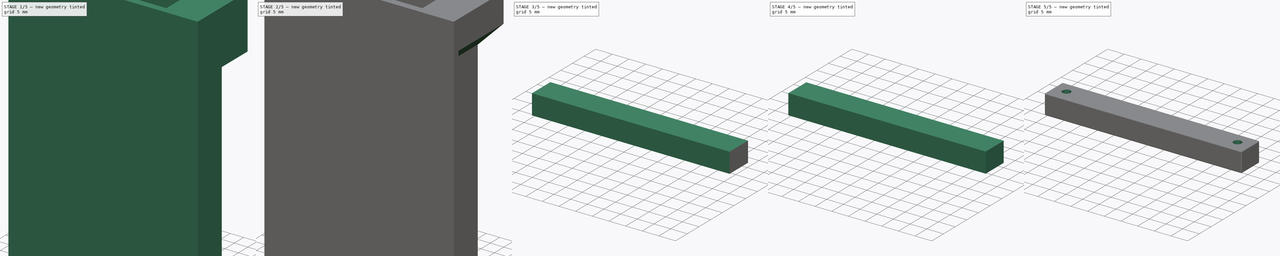
[diagram: build sequence overview — one tinted view per stage of 5, left to right]
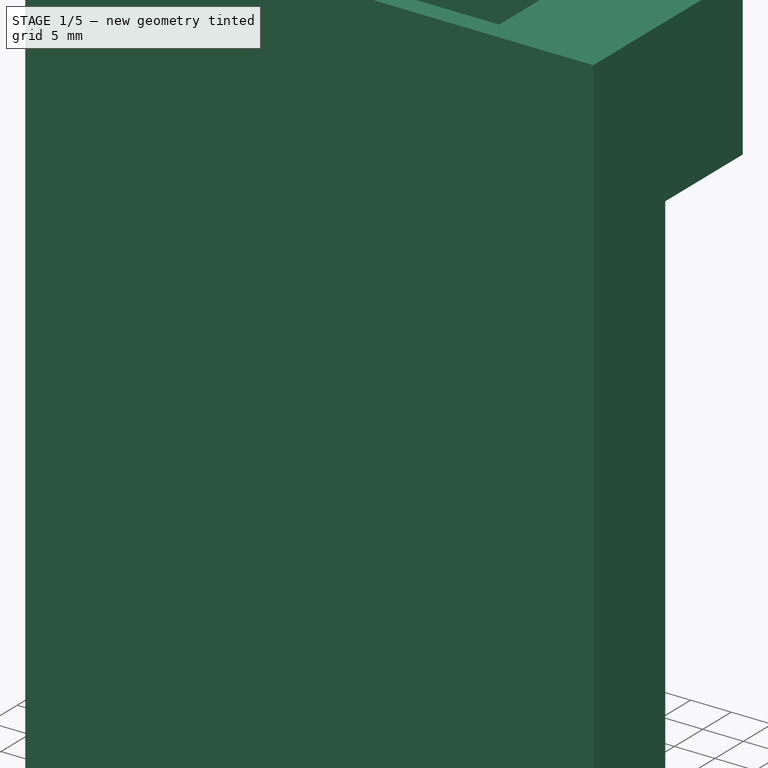
[diagram: stage 1 of 5 — iso view after this stage's code; geometry added in this stage tinted green]
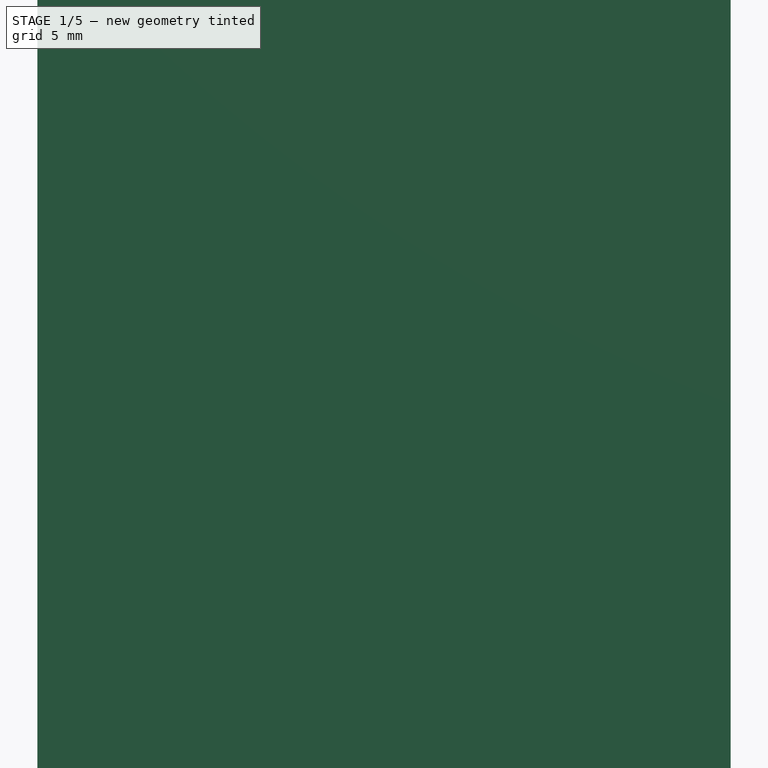
[diagram: stage 1 of 5 — front view after this stage's code; geometry added in this stage tinted green]
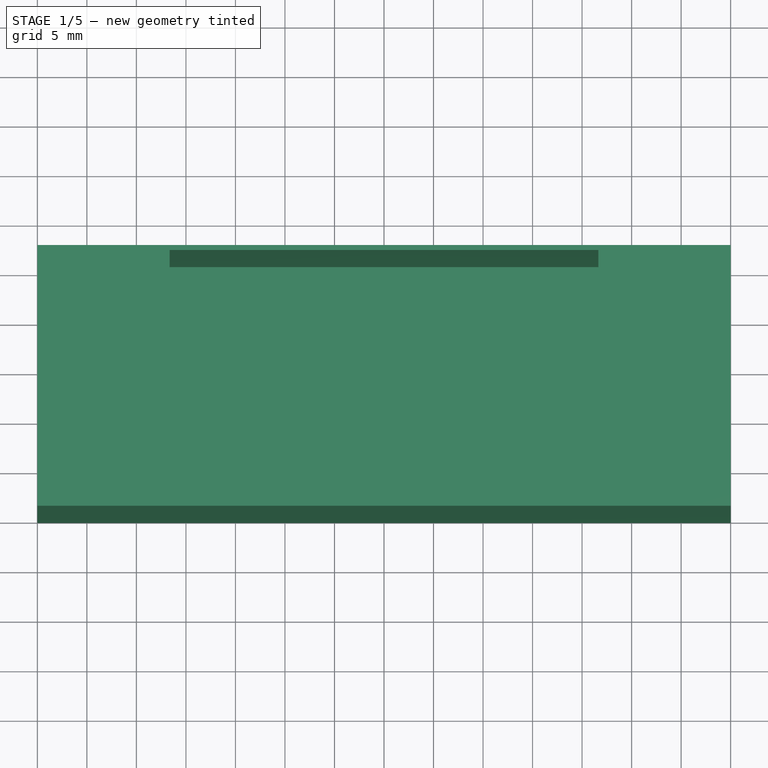
[diagram: stage 1 of 5 — top view after this stage's code; geometry added in this stage tinted green]
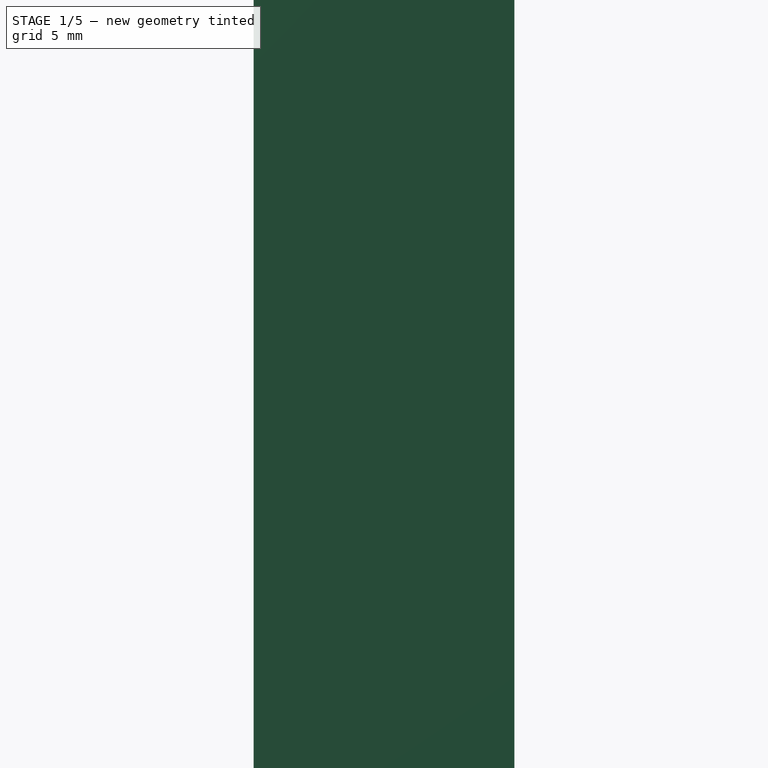
[diagram: stage 1 of 5 — right view after this stage's code; geometry added in this stage tinted green]
FCSTD DOCUMENT  (FreeCAD 1.0R39319 (Git))
Label: battery holder
License: All rights reserved
LicenseURL: https://en.wikipedia.org/wiki/All_rights_reserved
objects: PartDesign::Pocket×10, Sketcher::SketchObject×9, PartDesign::Pad×3, PartDesign::Fillet×2, PartDesign::Body×2, App::DocumentObjectGroup×1, PartDesign::Chamfer×1, PartDesign::SubShapeBinder×1
note: 69 computed .brp shape members not serialized (recipe doc carries the construction recipe); baked Part::Feature solids carry a one-line shape summary decoded from their .brp

FEATURE [Sketcher::SketchObject] Sketch
  ArcFitTolerance = 1e-06
  AttachmentSupport = -> [XY_Plane]
  FullyConstrained = true
  MakeInternals = false
  MapMode = 5
  sketch-geometry (8):
    g0: LineSegment StartX=0 StartY=0 StartZ=0 EndX=70 EndY=0 EndZ=0
    g1: LineSegment StartX=70 StartY=0 StartZ=0 EndX=70 EndY=2.52 EndZ=0
    g2: LineSegment StartX=70 StartY=2.52 StartZ=0 EndX=60.45 EndY=2.52 EndZ=0
    g3: LineSegment StartX=60.45 StartY=2.52 StartZ=0 EndX=60.45 EndY=26.32 EndZ=0
    g4: LineSegment StartX=60.45 StartY=26.32 StartZ=0 EndX=9.55 EndY=26.32 EndZ=0
    g5: LineSegment StartX=9.55 StartY=26.32 StartZ=0 EndX=9.55 EndY=2.52 EndZ=0
    g6: LineSegment StartX=9.55 StartY=2.52 StartZ=0 EndX=0 EndY=2.52 EndZ=0
    g7: LineSegment StartX=0 StartY=2.52 StartZ=0 EndX=0 EndY=0 EndZ=0
  constraints (23):
    c: Coincident(g-1,g0)
    c: PointOnObject(g0,g-1)
    c: Coincident(g0,g1)
    c: Vertical(g1)
    c: Coincident(g1,g2)
    c: Horizontal(g2)
    c: Coincident(g2,g3)
    c: Vertical(g3)
    c: Coincident(g3,g4)
    c: Horizontal(g4)
    c: Coincident(g4,g5)
    c: Vertical(g5)
    c: Coincident(g5,g6)
    c: PointOnObject(g6,g-2)
    c: Horizontal(g6)
    c: Coincident(g6,g7)
    c: Coincident(g7,g0)
    c: DistanceX(g0,g0) = 70
    c: Distance(g7,g7) = 2.52
    c: Equal(g7,g1)
    c: DistanceY(g5,g5) = 23.8
    c: DistanceX(g4,g4) = 50.9
    c: Equal(g6,g2)
FEATURE [PartDesign::Pad] Pad
  Direction = (0,0,1)
  Length = 99.8
  Length2 = 10
  Profile = -> Sketch
  ReferenceAxis = -> Sketch [N_Axis]
  Refine = true
  Suppressed = false
  Type = 0
FEATURE [App::DocumentObjectGroup] Measurements
FEATURE [Sketcher::SketchObject] Sketch001
  ArcFitTolerance = 1e-06
  AttachmentSupport = -> [Pad]
  ExternalGeometry = -> [Pad]
  FullyConstrained = true
  MakeInternals = false
  MapMode = 5
  Placement = pos=(0,0,99.8) rot=(0,0,1;0rad)
  sketch-geometry (4):
    g0: LineSegment StartX=13.35 StartY=25.82 StartZ=0 EndX=13.35 EndY=2.52 EndZ=0
    g1: LineSegment StartX=13.35 StartY=2.52 StartZ=0 EndX=56.65 EndY=2.52 EndZ=0
    g2: LineSegment StartX=56.65 StartY=2.52 StartZ=0 EndX=56.65 EndY=25.82 EndZ=0
    g3: LineSegment StartX=56.65 StartY=25.82 StartZ=0 EndX=13.35 EndY=25.82 EndZ=0
  constraints (12):
    c: Coincident(g0,g1)
    c: Coincident(g1,g2)
    c: Coincident(g2,g3)
    c: Vertical(g0)
    c: Vertical(g2)
    c: Horizontal(g1)
    c: Horizontal(g3)
    c: Distance(g0,g2) = 43.3
    c: Distance(g1,g3) = 23.3
    c: Coincident(g3,g0)
    c: Distance(g3,g-3) = 0.5
    c: Distance(g-4,g0) = 3.8
FEATURE [PartDesign::Pocket] Pocket
  BaseFeature = -> Pad
  Direction = (0,0,-1)
  Length = 98.8
  Length2 = 5
  Profile = -> Sketch001
  ReferenceAxis = -> Sketch001 [N_Axis]
  Refine = true
  Suppressed = false
  Type = 0
FEATURE [Sketcher::SketchObject] Sketch002
  ArcFitTolerance = 1e-06
  AttachmentSupport = -> [Pocket]
  ExternalGeometry = -> [Pocket]
  FullyConstrained = true
  MakeInternals = false
  MapMode = 5
  Placement = pos=(0,0,99.8) rot=(0,0,1;0rad)
  sketch-geometry (8):
    g0: LineSegment StartX=60.45 StartY=26.32 StartZ=0 EndX=60.45 EndY=2.52 EndZ=0
    g1: LineSegment StartX=60.45 StartY=2.52 StartZ=0 EndX=70 EndY=2.52 EndZ=0
    g2: LineSegment StartX=70 StartY=2.52 StartZ=0 EndX=70 EndY=26.32 EndZ=0
    g3: LineSegment StartX=70 StartY=26.32 StartZ=0 EndX=60.45 EndY=26.32 EndZ=0
    g4: LineSegment StartX=9.55 StartY=26.32 StartZ=0 EndX=0 EndY=26.32 EndZ=0
    g5: LineSegment StartX=0 StartY=26.32 StartZ=0 EndX=0 EndY=2.52 EndZ=0
    g6: LineSegment StartX=0 StartY=2.52 StartZ=0 EndX=9.55 EndY=2.52 EndZ=0
    g7: LineSegment StartX=9.55 StartY=2.52 StartZ=0 EndX=9.55 EndY=26.32 EndZ=0
  constraints (20):
    c: Coincident(g0,g1)
    c: Coincident(g1,g2)
    c: Coincident(g2,g3)
    c: Coincident(g3,g0)
    c: Vertical(g0)
    c: Vertical(g2)
    c: Horizontal(g1)
    c: Horizontal(g3)
    c: Coincident(g0,g-5)
    c: Coincident(g1,g-6)
    c: Coincident(g4,g5)
    c: Coincident(g5,g6)
    c: Coincident(g6,g7)
    c: Coincident(g7,g4)
    c: Horizontal(g4)
    c: Horizontal(g6)
    c: Vertical(g5)
    c: Vertical(g7)
    c: Coincident(g4,g-4)
    c: Coincident(g5,g-3)
FEATURE [PartDesign::Pad] Pad001
  BaseFeature = -> Pocket
  Direction = (0,0,1)
  Length = 20
  Length2 = 10
  Profile = -> Sketch002
  ReferenceAxis = -> Sketch002 [N_Axis]
  Refine = true
  Reversed = true
  Suppressed = false
  Type = 0
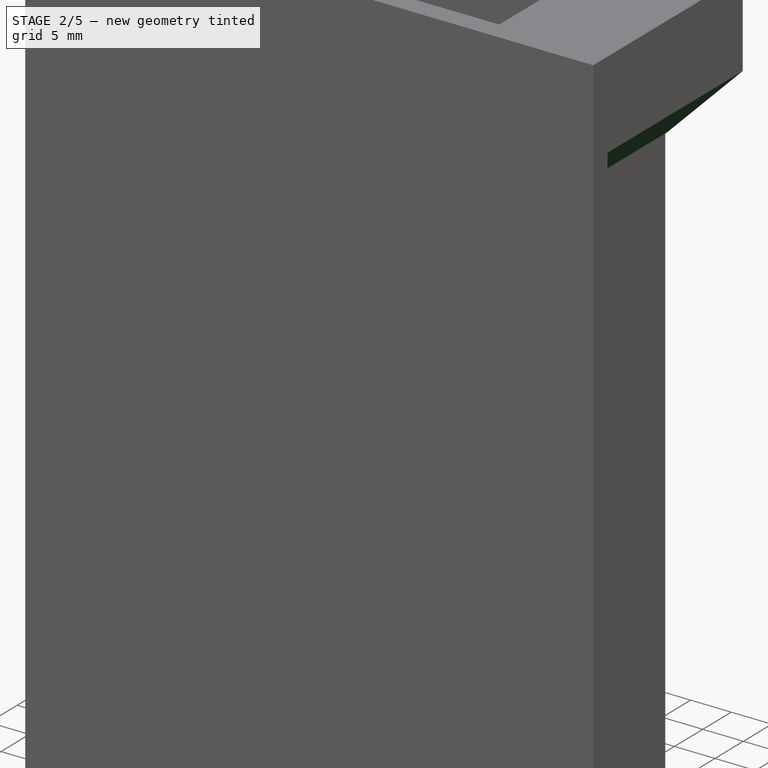
[diagram: stage 2 of 5 — iso view after this stage's code; geometry added in this stage tinted green]
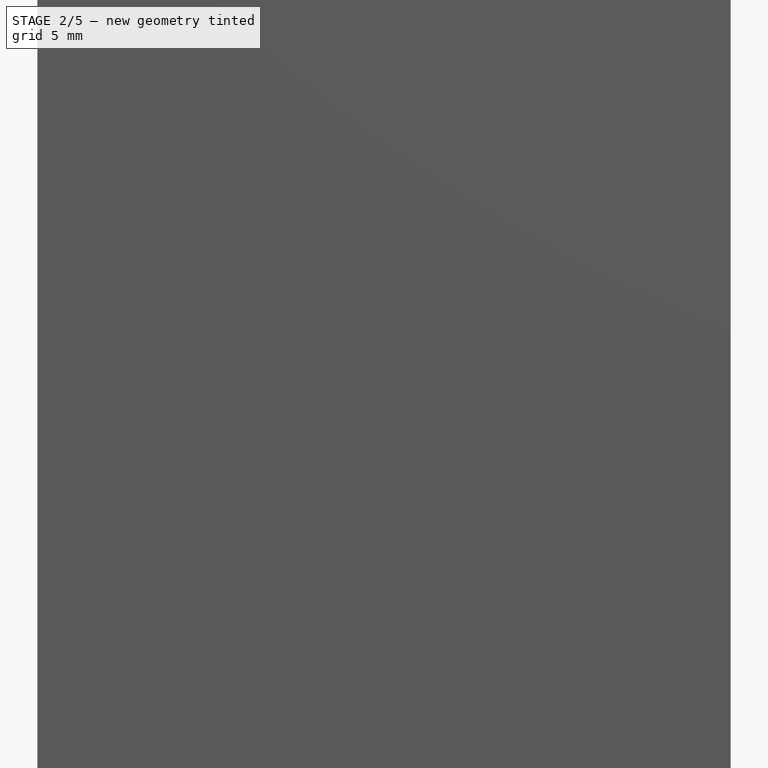
[diagram: stage 2 of 5 — front view after this stage's code; geometry added in this stage tinted green]
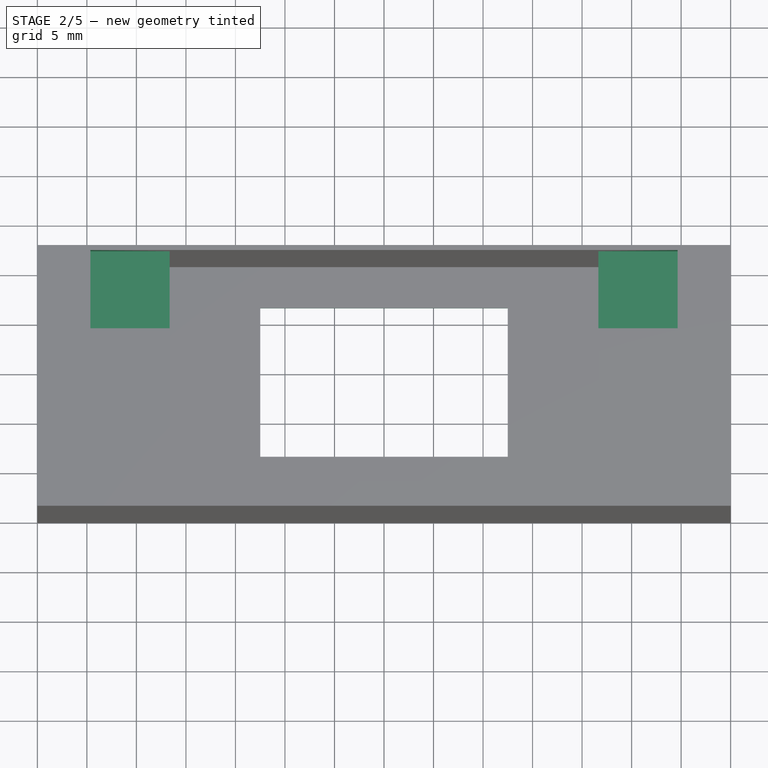
[diagram: stage 2 of 5 — top view after this stage's code; geometry added in this stage tinted green]
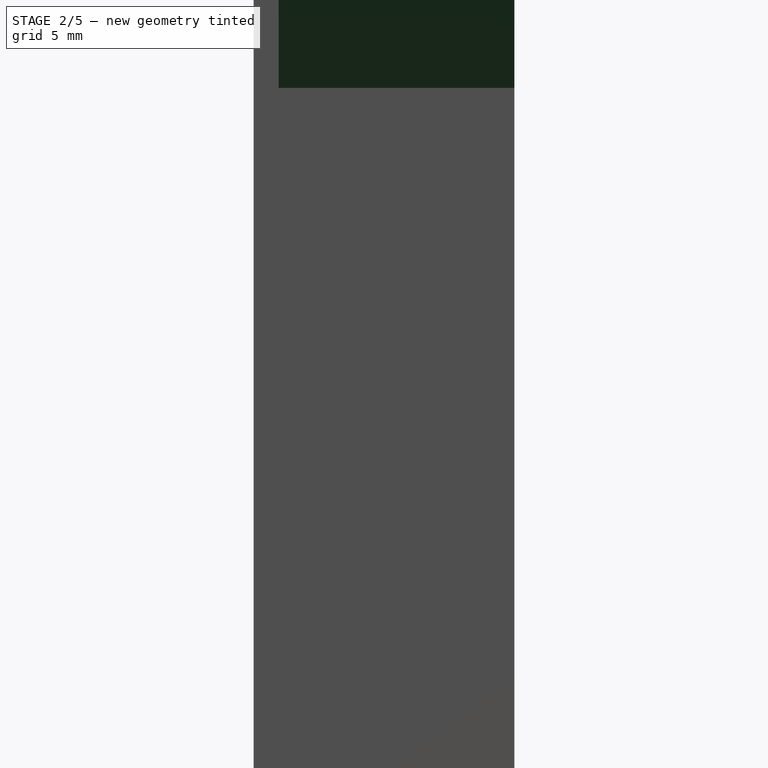
[diagram: stage 2 of 5 — right view after this stage's code; geometry added in this stage tinted green]
FEATURE [PartDesign::Chamfer] Chamfer
  Angle = 45
  Base = -> Pad001 [Edge23,Edge24]
  BaseFeature = -> Pad001
  ChamferType = 0
  FlipDirection = false
  Refine = true
  Size = 9.3
  Size2 = 1
  SupportTransform = false
  Suppressed = false
  UseAllEdges = false
FEATURE [Sketcher::SketchObject] Sketch003
  ArcFitTolerance = 1e-06
  AttachmentSupport = -> [Chamfer]
  ExternalGeometry = -> [Chamfer]
  FullyConstrained = true
  MakeInternals = false
  MapMode = 5
  Placement = pos=(0,0,99.8) rot=(0,0,1;0rad)
  sketch-geometry (8):
    g0: LineSegment StartX=13.35 StartY=25.82 StartZ=0 EndX=5.35 EndY=25.82 EndZ=0
    g1: LineSegment StartX=5.35 StartY=25.82 StartZ=0 EndX=5.35 EndY=17.92 EndZ=0
    g2: LineSegment StartX=5.35 StartY=17.92 StartZ=0 EndX=13.35 EndY=17.92 EndZ=0
    g3: LineSegment StartX=13.35 StartY=17.92 StartZ=0 EndX=13.35 EndY=25.82 EndZ=0
    g4: LineSegment StartX=56.65 StartY=25.82 StartZ=0 EndX=56.65 EndY=17.92 EndZ=0
    g5: LineSegment StartX=56.65 StartY=17.92 StartZ=0 EndX=64.65 EndY=17.92 EndZ=0
    g6: LineSegment StartX=64.65 StartY=17.92 StartZ=0 EndX=64.65 EndY=25.82 EndZ=0
    g7: LineSegment StartX=64.65 StartY=25.82 StartZ=0 EndX=56.65 EndY=25.82 EndZ=0
  constraints (22):
    c: Coincident(g0,g1)
    c: Coincident(g1,g2)
    c: Coincident(g2,g3)
    c: Coincident(g3,g0)
    c: Horizontal(g0)
    c: Horizontal(g2)
    c: Vertical(g1)
    c: Vertical(g3)
    c: Distance(g1,g3) = 8
    c: Distance(g0,g2) = 7.9
    c: Coincident(g0,g-3)
    c: Coincident(g4,g5)
    c: Coincident(g5,g6)
    c: Coincident(g6,g7)
    c: Coincident(g7,g4)
    c: Vertical(g4)
    c: Vertical(g6)
    c: Horizontal(g5)
    c: Horizontal(g7)
    c: Coincident(g4,g-4)
    c: Equal(g7,g0)
    c: Equal(g6,g1)
FEATURE [PartDesign::Pocket] Pocket001
  BaseFeature = -> Chamfer
  Direction = (0,0,-1)
  Length = 7.4
  Length2 = 5
  Profile = -> Sketch003
  ReferenceAxis = -> Sketch003 [N_Axis]
  Refine = true
  Suppressed = false
  Type = 0
FEATURE [Sketcher::SketchObject] Sketch004
  ArcFitTolerance = 1e-06
  AttachmentSupport = -> [Pocket001]
  ExternalGeometry = -> [Pocket001]
  FullyConstrained = true
  MakeInternals = false
  MapMode = 5
  Placement = pos=(0,0,1) rot=(0,0,1;0rad)
  sketch-geometry (7):
    g0: LineSegment [constr] StartX=13.35 StartY=25.82 StartZ=0 EndX=56.65 EndY=2.52 EndZ=0
    g1: LineSegment [constr] StartX=56.65 StartY=25.82 StartZ=0 EndX=13.35 EndY=2.52 EndZ=0
    g2: LineSegment StartX=22.5 StartY=6.67 StartZ=0 EndX=47.5 EndY=6.67 EndZ=0
    g3: LineSegment StartX=47.5 StartY=6.67 StartZ=0 EndX=47.5 EndY=21.67 EndZ=0
    g4: LineSegment StartX=47.5 StartY=21.67 StartZ=0 EndX=22.5 EndY=21.67 EndZ=0
    g5: LineSegment StartX=22.5 StartY=21.67 StartZ=0 EndX=22.5 EndY=6.67 EndZ=0
    g6: GeomPoint [constr] X=35 Y=14.17 Z=0
  constraints (16):
    c: Coincident(g0,g-3)
    c: Coincident(g0,g-4)
    c: Coincident(g1,g-3)
    c: Coincident(g1,g-4)
    c: Coincident(g2,g3)
    c: Coincident(g3,g4)
    c: Coincident(g4,g5)
    c: Coincident(g5,g2)
    c: Horizontal(g2)
    c: Horizontal(g4)
    c: Vertical(g3)
    c: Vertical(g5)
    c: Symmetric(g4,g2,g6)
    c: Distance(g3,g5) = 25
    c: Distance(g2,g4) = 15
    c: Symmetric(g1,g1,g6)
FEATURE [PartDesign::Pocket] Pocket002
  BaseFeature = -> Pocket001
  Direction = (0,0,-1)
  Length = 5
  Length2 = 5
  Profile = -> Sketch004
  ReferenceAxis = -> Sketch004 [N_Axis]
  Refine = true
  Suppressed = false
  Type = 2
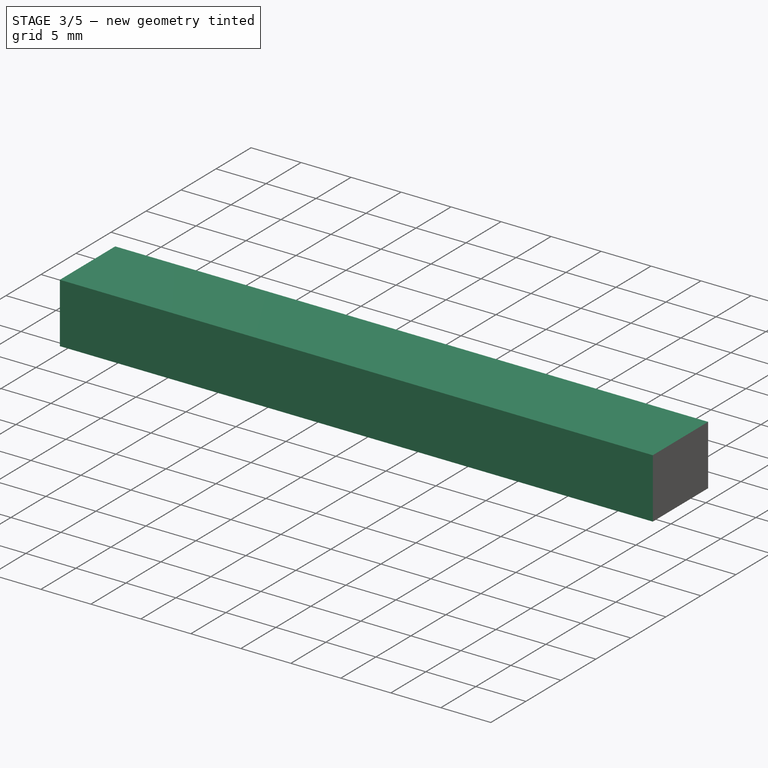
[diagram: stage 3 of 5 — iso view after this stage's code; geometry added in this stage tinted green]
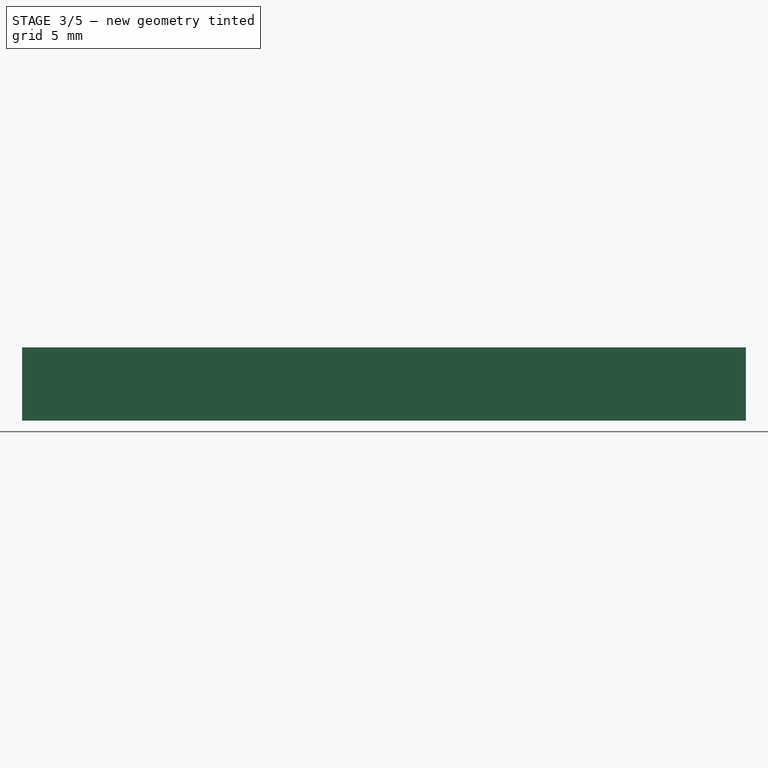
[diagram: stage 3 of 5 — front view after this stage's code; geometry added in this stage tinted green]
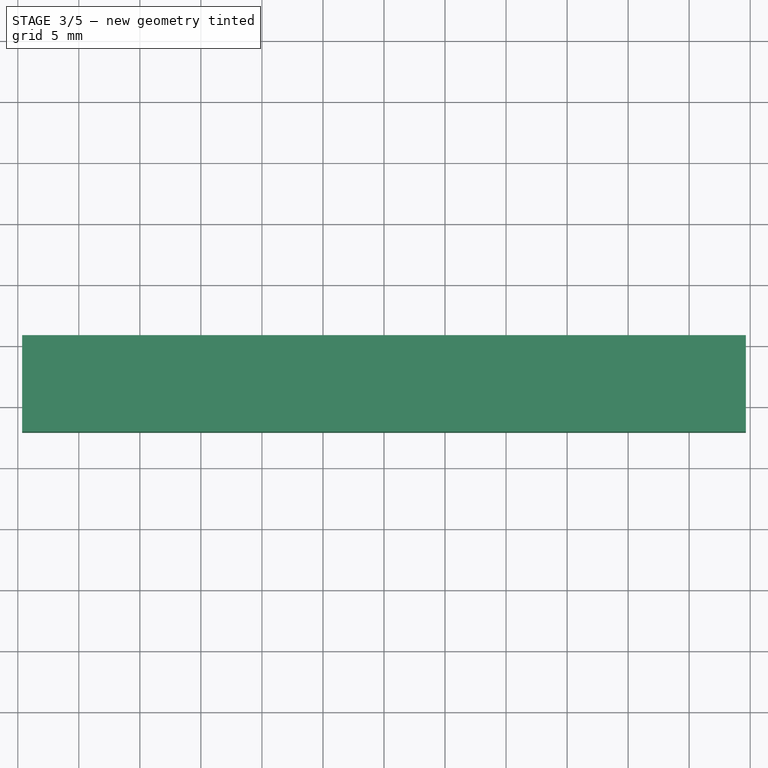
[diagram: stage 3 of 5 — top view after this stage's code; geometry added in this stage tinted green]
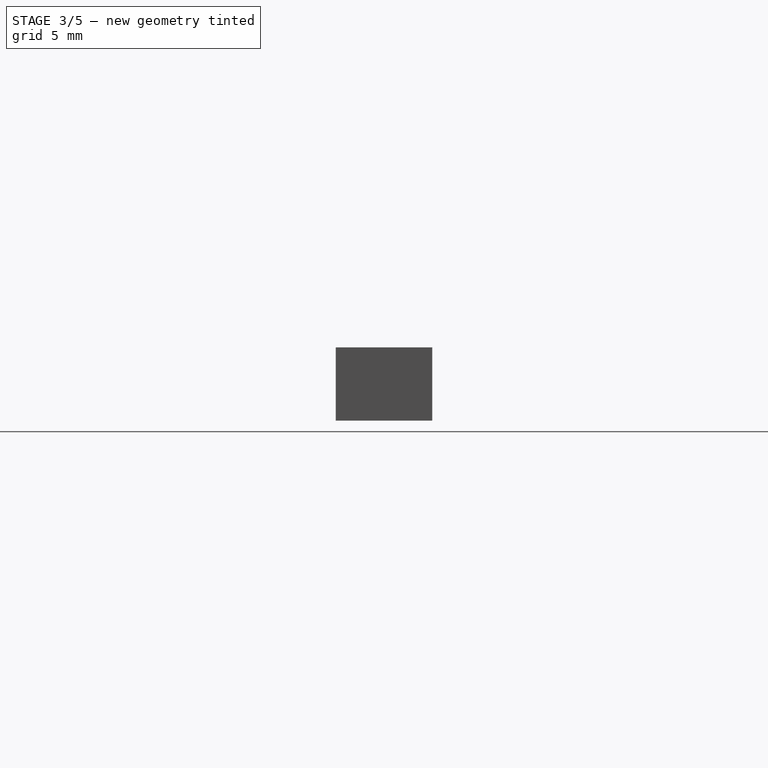
[diagram: stage 3 of 5 — right view after this stage's code; geometry added in this stage tinted green]
FEATURE [Sketcher::SketchObject] Sketch005
  ArcFitTolerance = 1e-06
  AttachmentSupport = -> [Pocket002]
  ExternalGeometry = -> [Pocket002]
  FullyConstrained = true
  MakeInternals = false
  MapMode = 5
  Placement = pos=(0,0,92.4) rot=(0,0,1;0rad)
  sketch-geometry (6):
    g0: LineSegment [constr] StartX=5.35 StartY=25.82 StartZ=0 EndX=13.35 EndY=17.92 EndZ=0
    g1: LineSegment [constr] StartX=5.35 StartY=17.92 StartZ=0 EndX=13.35 EndY=25.82 EndZ=0
    g2: LineSegment [constr] StartX=56.65 StartY=25.82 StartZ=0 EndX=64.65 EndY=17.92 EndZ=0
    g3: LineSegment [constr] StartX=56.65 StartY=17.92 StartZ=0 EndX=64.65 EndY=25.82 EndZ=0
    g4: Circle CenterX=9.35 CenterY=21.87 CenterZ=0 NormalX=0 NormalY=0 NormalZ=1 AngleXU=0 Radius=1.6
    g5: Circle CenterX=60.65 CenterY=21.87 CenterZ=0 NormalX=0 NormalY=0 NormalZ=1 AngleXU=0 Radius=1.6
  constraints (12):
    c: Coincident(g0,g-3)
    c: Coincident(g0,g-4)
    c: Coincident(g1,g-4)
    c: Coincident(g1,g-3)
    c: Coincident(g2,g-5)
    c: Coincident(g2,g-6)
    c: Coincident(g3,g-6)
    c: Coincident(g3,g-5)
    c: Diameter(g4) = 3.2
    c: Symmetric(g0,g0,g4)
    c: Symmetric(g3,g3,g5)
    c: Equal(g4,g5)
FEATURE [PartDesign::Pocket] Pocket003
  BaseFeature = -> Pocket002
  Direction = (0,0,-1)
  Length = 9
  Length2 = 5
  Profile = -> Sketch005
  ReferenceAxis = -> Sketch005 [N_Axis]
  Refine = true
  Suppressed = false
  Type = 0
FEATURE [Sketcher::SketchObject] Sketch006
  ArcFitTolerance = 1e-06
  AttachmentSupport = -> [Pocket003]
  ExternalGeometry = -> [Pocket003]
  FullyConstrained = true
  MakeInternals = false
  MapMode = 5
  Placement = pos=(0,2.52,0) rot=(0,0.707107,0.707107;3.14159rad)
  sketch-geometry (20):
    g0: Circle CenterX=-65.15 CenterY=75.23 CenterZ=0 NormalX=0 NormalY=0 NormalZ=1 AngleXU=0 Radius=2.2
    g1: Circle CenterX=-65.15 CenterY=5.05 CenterZ=0 NormalX=0 NormalY=0 NormalZ=1 AngleXU=0 Radius=2.2
    g2: Circle CenterX=-4.85 CenterY=75.23 CenterZ=0 NormalX=0 NormalY=0 NormalZ=1 AngleXU=0 Radius=2.2
    g3: Circle CenterX=-4.85 CenterY=5.05 CenterZ=0 NormalX=0 NormalY=0 NormalZ=1 AngleXU=0 Radius=2.2
    g4: LineSegment [constr] StartX=-70 StartY=0 StartZ=0 EndX=0 EndY=0 EndZ=0
    g5: LineSegment [constr] StartX=0 StartY=0 StartZ=0 EndX=0 EndY=2.85 EndZ=0
    g6: LineSegment [constr] StartX=0 StartY=2.85 StartZ=0 EndX=-70 EndY=2.85 EndZ=0
    g7: LineSegment [constr] StartX=-70 StartY=2.85 StartZ=0 EndX=-70 EndY=0 EndZ=0
    g8: LineSegment [constr] StartX=-70 StartY=73.03 StartZ=0 EndX=-70 EndY=2.85 EndZ=0
    g9: LineSegment [constr] StartX=-70 StartY=2.85 StartZ=0 EndX=0 EndY=2.85 EndZ=0
    g10: LineSegment [constr] StartX=0 StartY=2.85 StartZ=0 EndX=0 EndY=73.03 EndZ=0
    g11: LineSegment [constr] StartX=0 StartY=73.03 StartZ=0 EndX=-70 EndY=73.03 EndZ=0
    g12: LineSegment [constr] StartX=-70 StartY=89.1 StartZ=0 EndX=-70 EndY=0 EndZ=0
    g13: LineSegment [constr] StartX=-70 StartY=0 StartZ=0 EndX=-67.35 EndY=0 EndZ=0
    g14: LineSegment [constr] StartX=-67.35 StartY=0 StartZ=0 EndX=-67.35 EndY=89.1 EndZ=0
    g15: LineSegment [constr] StartX=-67.35 StartY=89.1 StartZ=0 EndX=-70 EndY=89.1 EndZ=0
    g16: LineSegment [constr] StartX=0 StartY=89.1 StartZ=0 EndX=-2.65 EndY=89.1 EndZ=0
    g17: LineSegment [constr] StartX=-2.65 StartY=89.1 StartZ=0 EndX=-2.65 EndY=0 EndZ=0
    g18: LineSegment [constr] StartX=-2.65 StartY=0 StartZ=0 EndX=0 EndY=0 EndZ=0
    g19: LineSegment [constr] StartX=0 StartY=0 StartZ=0 EndX=0 EndY=89.1 EndZ=0
  constraints (57):
    c: Diameter(g0) = 4.4
    c: Equal(g0,g1)
    c: Equal(g1,g3)
    c: Equal(g3,g2)
    c: Coincident(g4,g5)
    c: Coincident(g5,g6)
    c: Coincident(g6,g7)
    c: Coincident(g7,g4)
    c: Horizontal(g4)
    c: Horizontal(g6)
    c: Vertical(g5)
    c: Vertical(g7)
    c: Coincident(g4,g-5)
    c: PointOnObject(g5,g-6)
    c: Distance(g7,g7) = 2.85
    c: Tangent(g1,g6)
    c: Tangent(g3,g6)
    c: Coincident(g8,g9)
    c: Coincident(g9,g10)
    c: Coincident(g10,g11)
    c: Coincident(g11,g8)
    c: Vertical(g8)
    c: Vertical(g10)
    c: Horizontal(g9)
    c: Horizontal(g11)
    c: PointOnObject(g8,g-5)
    c: PointOnObject(g9,g-6)
    c: Tangent(g9,g1)
    c: DistanceY(g8,g8) = 70.18
    c: Tangent(g11,g0)
    c: Tangent(g2,g11)
    c: Coincident(g12,g13)
    c: Coincident(g13,g14)
    c: Coincident(g14,g15)
    c: Coincident(g15,g12)
    c: Vertical(g12)
    c: Vertical(g14)
    c: Horizontal(g13)
    c: Horizontal(g15)
    c: Coincident(g12,g-5)
    c: PointOnObject(g13,g4)
    c: Distance(g15,g15) = 2.65
    c: Tangent(g0,g14)
    c: Tangent(g1,g14)
    c: Coincident(g16,g17)
    c: Coincident(g17,g18)
    c: Coincident(g18,g19)
    c: Coincident(g19,g16)
    c: Horizontal(g16)
    c: Horizontal(g18)
    c: Vertical(g17)
    c: Vertical(g19)
    c: Coincident(g16,g-6)
    c: PointOnObject(g17,g4)
    c: Equal(g16,g15)
    c: Tangent(g2,g17)
    c: Tangent(g3,g17)
FEATURE [PartDesign::Pocket] Pocket004
  BaseFeature = -> Pocket003
  Direction = (0,-1,2e-16)
  Length = 5
  Length2 = 5
  Profile = -> Sketch006
  ReferenceAxis = -> Sketch006 [N_Axis]
  Refine = true
  Suppressed = false
  Type = 2
FEATURE [PartDesign::Fillet] Fillet
  Base = -> Pocket004 [Edge3,Edge54]
  BaseFeature = -> Pocket004
  Radius = 1
  Refine = true
  SupportTransform = false
  Suppressed = false
  UseAllEdges = false
FEATURE [PartDesign::Body] Body  label="Case"
  AllowCompound = false
  Group = -> [Sketch,Pad,Sketch001,Pocket,Sketch002,Pad001,Chamfer,Sketch003,Pocket001,Sketch004,Pocket002,Sketch005,Pocket003,Sketch006,Pocket004,Fillet]
  Origin = -> Origin
  Tip = -> Fillet
FEATURE [PartDesign::SubShapeBinder] Binder
  BindCopyOnChange = 0
  BindMode = 0
  ClaimChildren = false
  Context = -> Body001 [Binder.]
  Fuse = false
  MakeFace = true
  OffsetFill = false
  OffsetIntersection = false
  OffsetJoinType = 0
  OffsetOpenResult = false
  PartialLoad = false
  Refine = true
  Relative = true
  Support = -> [Body[Fillet.Face34,Fillet.Face35]]
  _Version = 2
FEATURE [Sketcher::SketchObject] Sketch007
  ArcFitTolerance = 1e-06
  AttachmentSupport = -> [Binder]
  ExternalGeometry = -> [Binder]
  FullyConstrained = true
  MakeInternals = false
  MapMode = 5
  Placement = pos=(0,0,92.4) rot=(0,0,1;0rad)
  sketch-geometry (4):
    g0: LineSegment StartX=5.35 StartY=25.82 StartZ=0 EndX=5.35 EndY=17.92 EndZ=0
    g1: LineSegment StartX=5.35 StartY=17.92 StartZ=0 EndX=64.65 EndY=17.92 EndZ=0
    g2: LineSegment StartX=64.65 StartY=17.92 StartZ=0 EndX=64.65 EndY=25.82 EndZ=0
    g3: LineSegment StartX=64.65 StartY=25.82 StartZ=0 EndX=5.35 EndY=25.82 EndZ=0
  constraints (10):
    c: Coincident(g0,g1)
    c: Coincident(g1,g2)
    c: Coincident(g2,g3)
    c: Coincident(g3,g0)
    c: Vertical(g0)
    c: Vertical(g2)
    c: Horizontal(g1)
    c: Horizontal(g3)
    c: Coincident(g0,g-4)
    c: Coincident(g1,g-3)
FEATURE [PartDesign::Pad] Pad002
  Direction = (0,0,1)
  Length = 6
  Length2 = 10
  Profile = -> Sketch007
  ReferenceAxis = -> Sketch007 [N_Axis]
  Refine = true
  Suppressed = false
  Type = 0
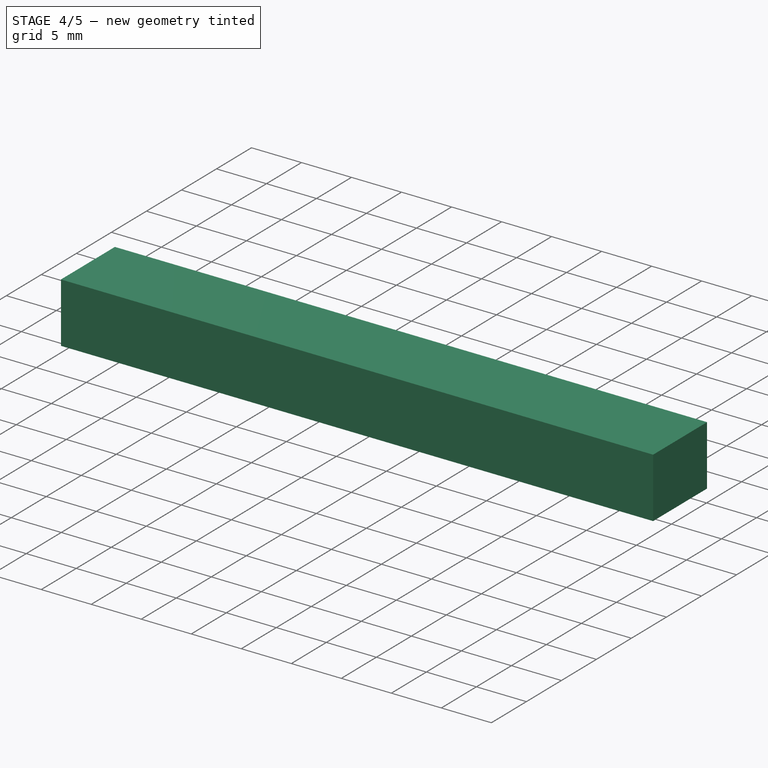
[diagram: stage 4 of 5 — iso view after this stage's code; geometry added in this stage tinted green]
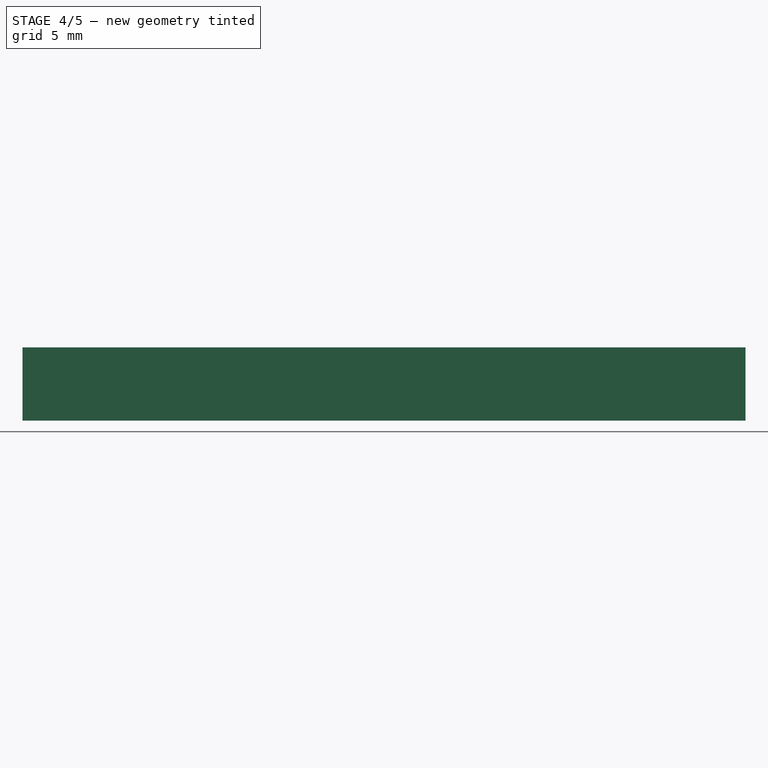
[diagram: stage 4 of 5 — front view after this stage's code; geometry added in this stage tinted green]
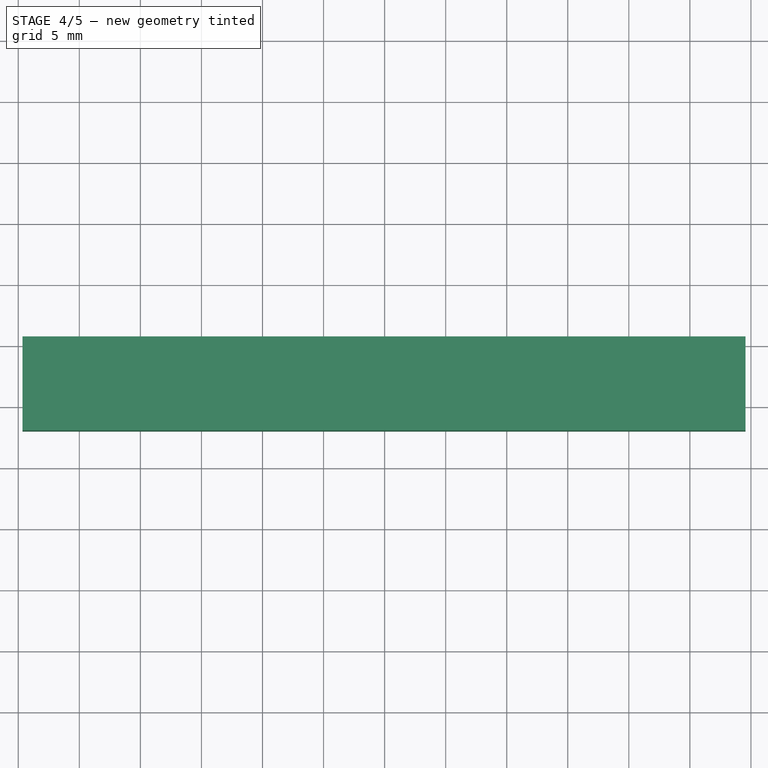
[diagram: stage 4 of 5 — top view after this stage's code; geometry added in this stage tinted green]
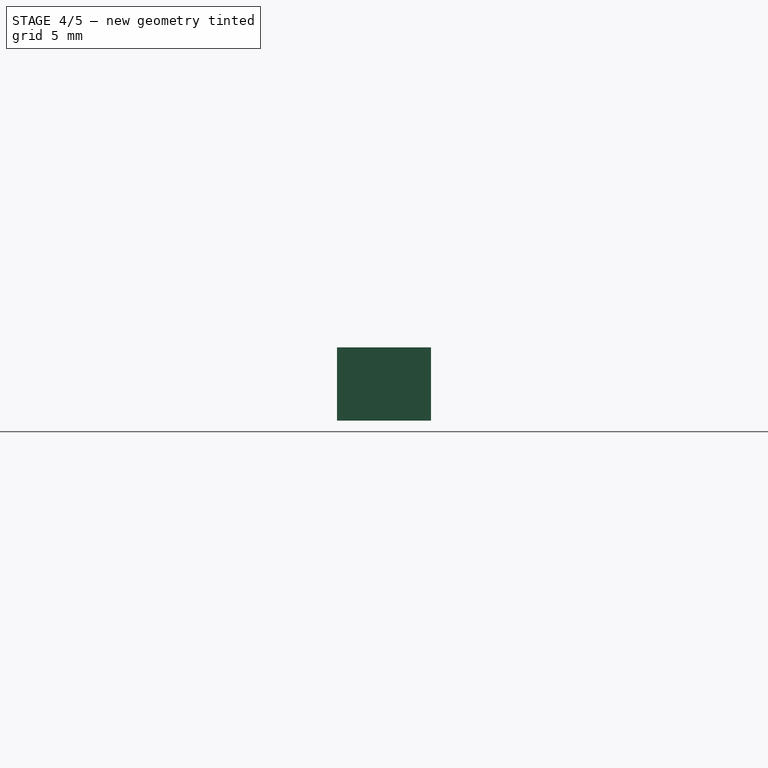
[diagram: stage 4 of 5 — right view after this stage's code; geometry added in this stage tinted green]
FEATURE [PartDesign::Pocket] Pocket005
  BaseFeature = -> Pad002
  Direction = (0,-1,0)
  Length = 0.1
  Length2 = 5
  Profile = -> Pad002 [Face4]
  Refine = true
  Suppressed = false
  Type = 0
FEATURE [PartDesign::Pocket] Pocket006
  BaseFeature = -> Pocket005
  Direction = (0,1,0)
  Length = 0.1
  Length2 = 5
  Profile = -> Pocket005 [Face3]
  Refine = true
  Suppressed = false
  Type = 0
FEATURE [PartDesign::Pocket] Pocket007
  BaseFeature = -> Pocket006
  Direction = (-1,0,0)
  Length = 0.1
  Length2 = 5
  Profile = -> Pocket006 [Face6]
  Refine = true
  Suppressed = false
  Type = 0
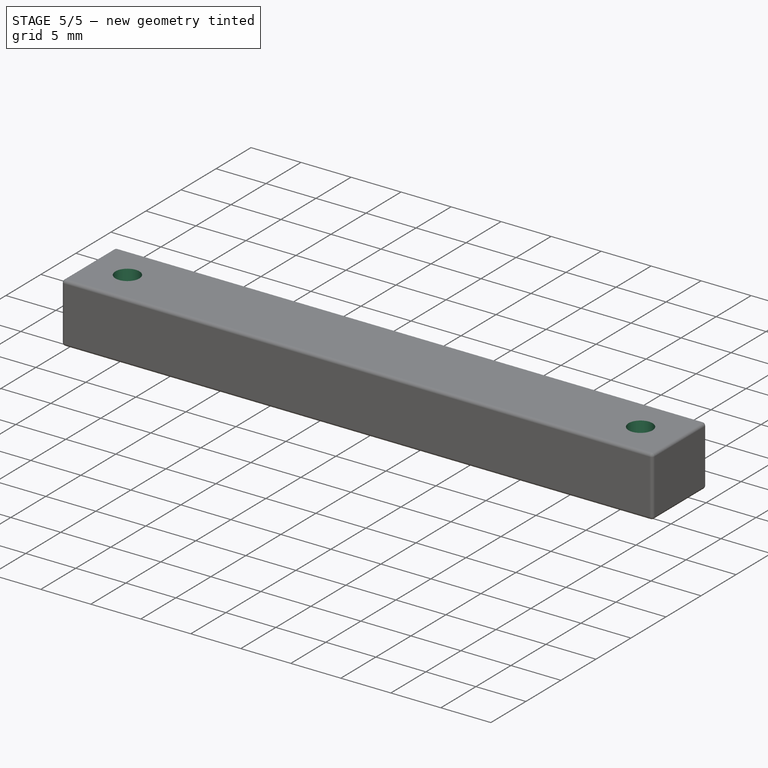
[diagram: stage 5 of 5 — iso view after this stage's code; geometry added in this stage tinted green]
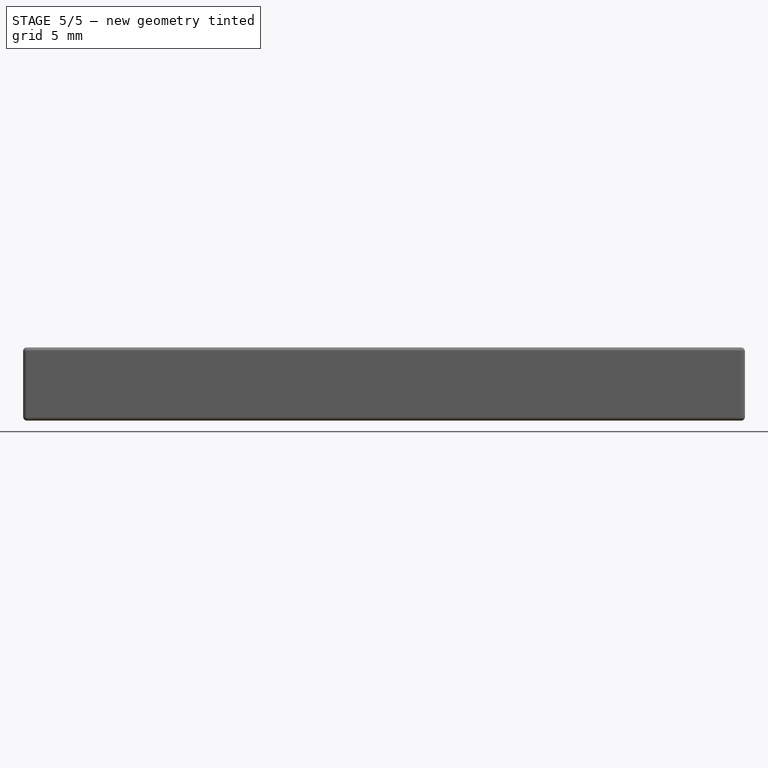
[diagram: stage 5 of 5 — front view after this stage's code; geometry added in this stage tinted green]
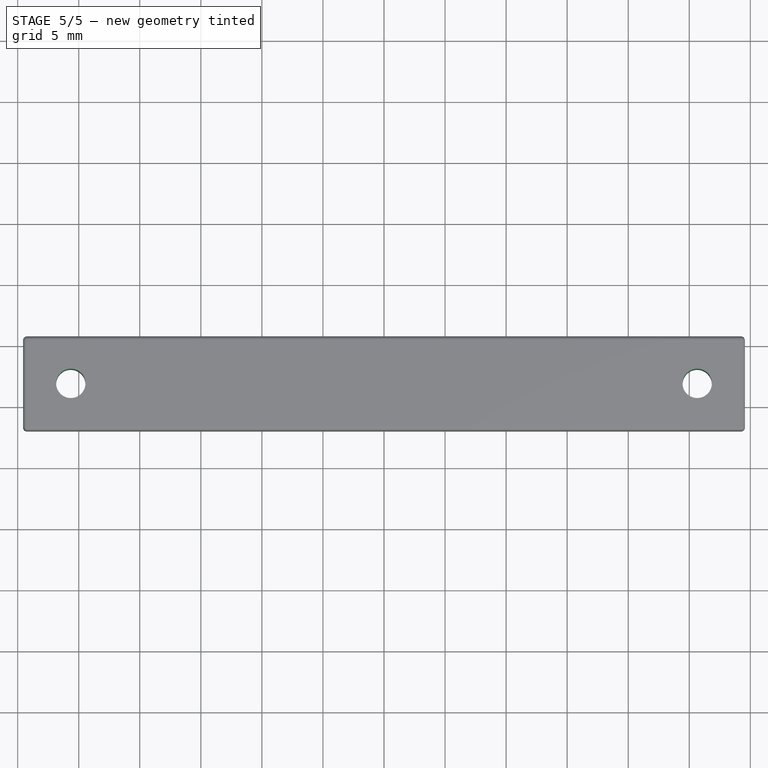
[diagram: stage 5 of 5 — top view after this stage's code; geometry added in this stage tinted green]
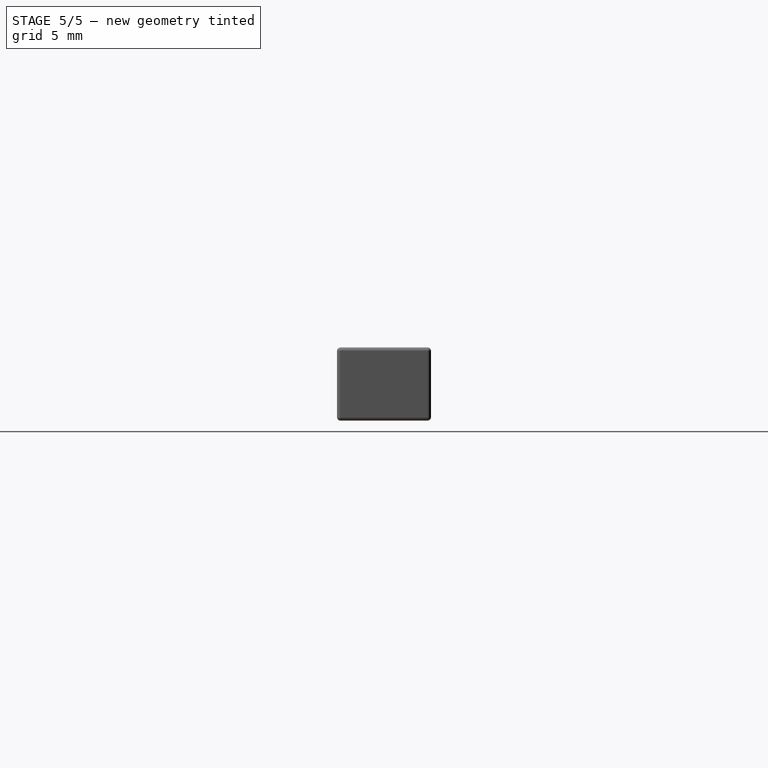
[diagram: stage 5 of 5 — right view after this stage's code; geometry added in this stage tinted green]
FEATURE [PartDesign::Pocket] Pocket008
  BaseFeature = -> Pocket007
  Direction = (1,0,0)
  Length = 0.1
  Length2 = 5
  Profile = -> Pocket007 [Face1]
  Refine = true
  Suppressed = false
  Type = 0
FEATURE [Sketcher::SketchObject] Sketch008
  ArcFitTolerance = 1e-06
  AttachmentSupport = -> [Binder]
  ExternalGeometry = -> [Binder]
  FullyConstrained = true
  MakeInternals = false
  MapMode = 5
  Placement = pos=(0,0,92.4) rot=(0,0,1;0rad)
  sketch-geometry (2):
    g0: Circle CenterX=9.35 CenterY=21.87 CenterZ=0 NormalX=0 NormalY=0 NormalZ=1 AngleXU=0 Radius=1.2
    g1: Circle CenterX=60.65 CenterY=21.87 CenterZ=0 NormalX=0 NormalY=0 NormalZ=1 AngleXU=0 Radius=1.2
  constraints (4):
    c: Coincident(g0,g-3)
    c: Coincident(g1,g-4)
    c: Equal(g0,g1)
    c: Diameter(g0) = 2.4
FEATURE [PartDesign::Pocket] Pocket009
  BaseFeature = -> Pocket008
  Direction = (0,0,-1)
  Length = 0
  Length2 = 5
  Profile = -> Sketch008
  ReferenceAxis = -> Sketch008 [N_Axis]
  Refine = true
  Suppressed = false
  Type = 3
  UpToFace = -> Pocket008 [Face6]
FEATURE [PartDesign::Fillet] Fillet001
  Base = -> Pocket009 [Edge2,Edge10,Edge9,Edge1,Edge7,Edge8,Edge3,Edge4,Edge13,Edge14,Edge11,Edge12]
  BaseFeature = -> Pocket009
  Radius = 0.3
  Refine = true
  SupportTransform = false
  Suppressed = false
  UseAllEdges = false
FEATURE [PartDesign::Body] Body001  label="Bar"
  AllowCompound = false
  Group = -> [Binder,Sketch007,Pad002,Pocket005,Pocket006,Pocket007,Pocket008,Sketch008,Pocket009,Fillet001]
  Origin = -> Origin001
  Tip = -> Fillet001
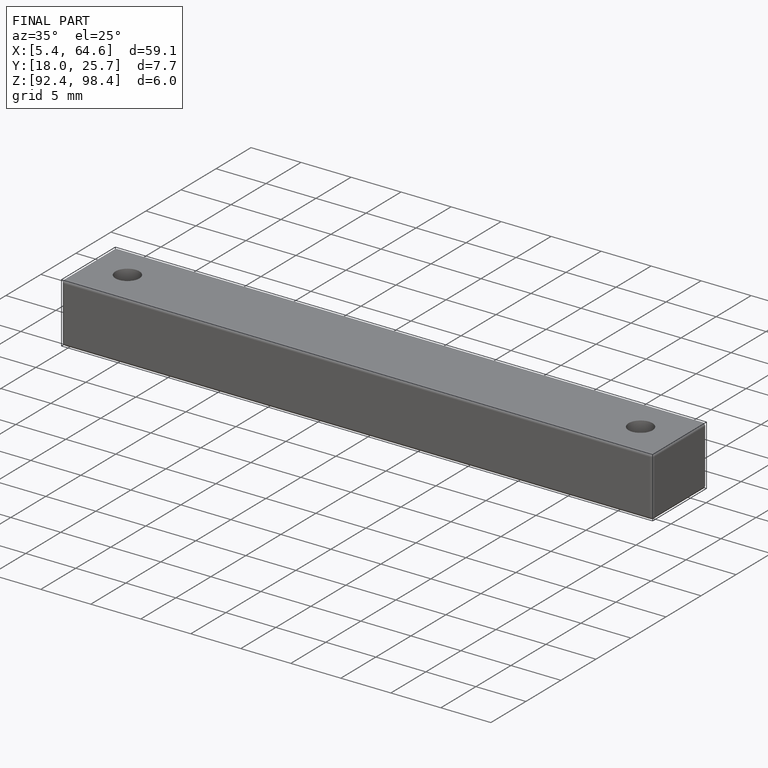
[diagram: finished part — iso view with bounding-box wireframe]
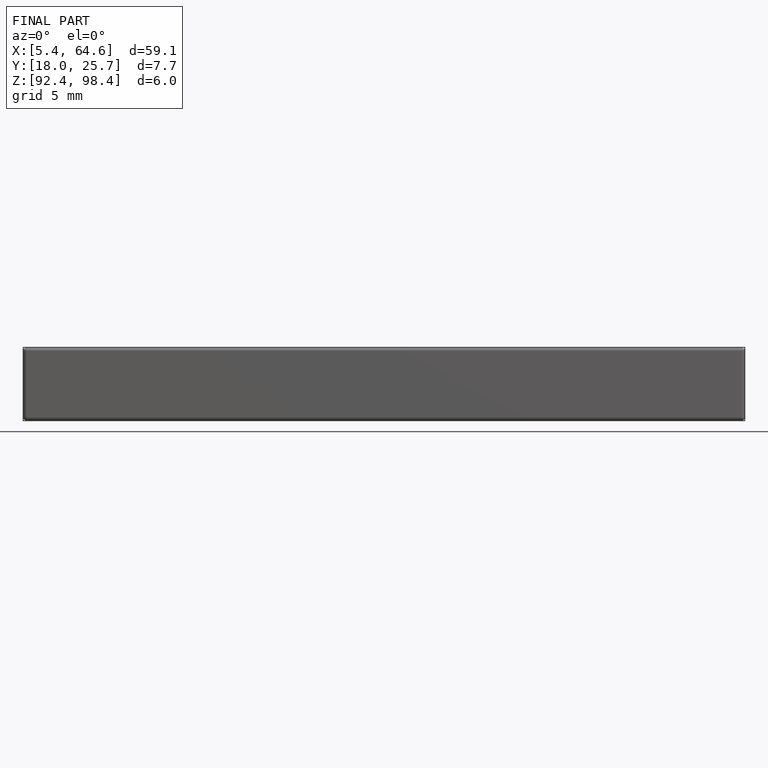
[diagram: finished part — front view with bounding-box wireframe]
